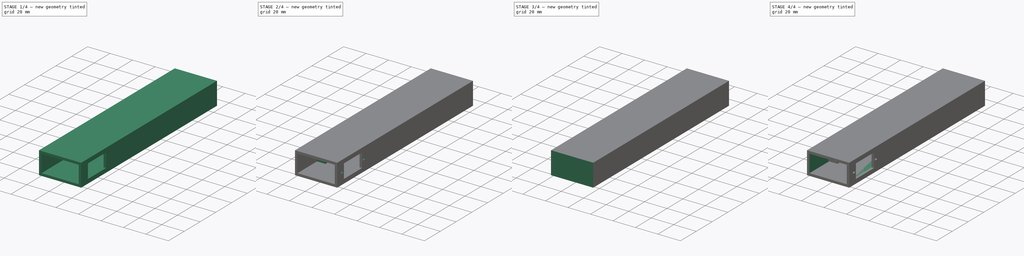
[diagram: build sequence overview — one tinted view per stage of 4, left to right]
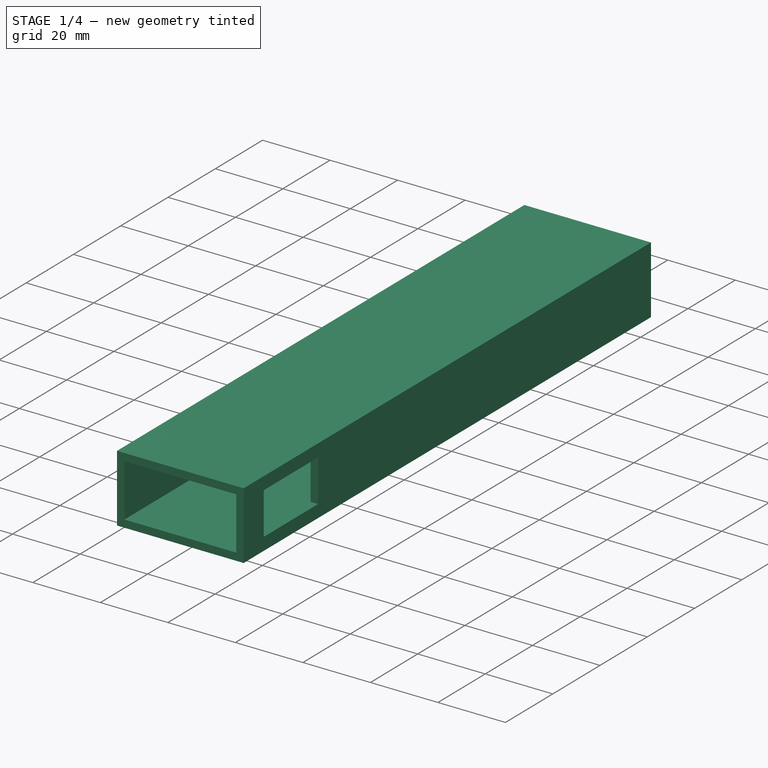
[diagram: stage 1 of 4 — iso view after this stage's code; geometry added in this stage tinted green]
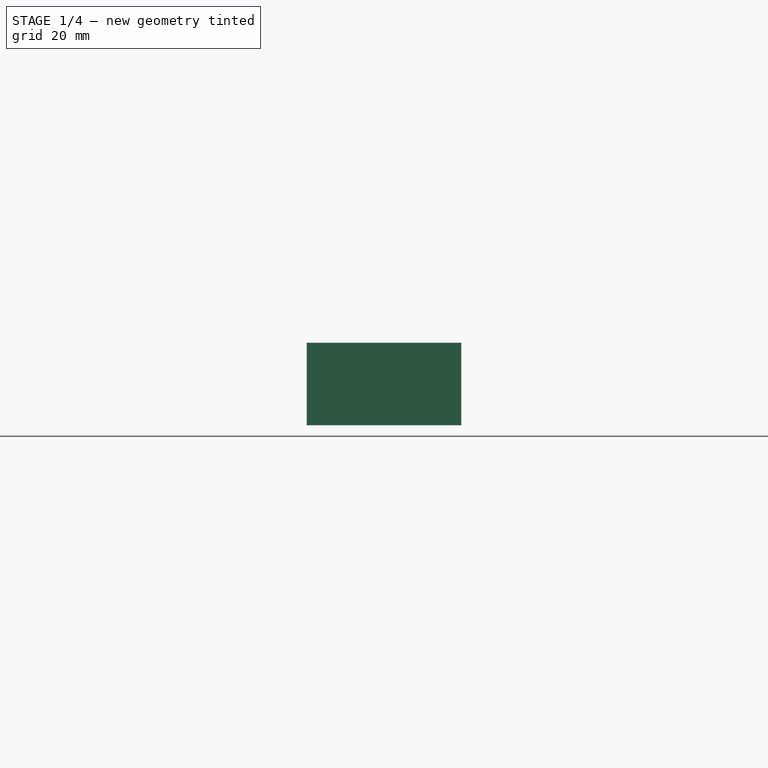
[diagram: stage 1 of 4 — front view after this stage's code; geometry added in this stage tinted green]
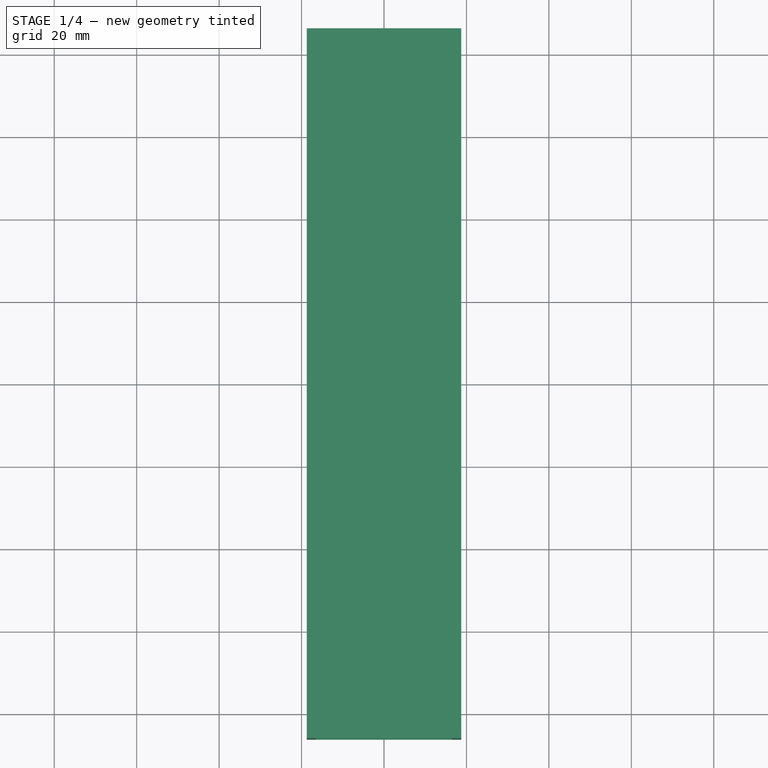
[diagram: stage 1 of 4 — top view after this stage's code; geometry added in this stage tinted green]
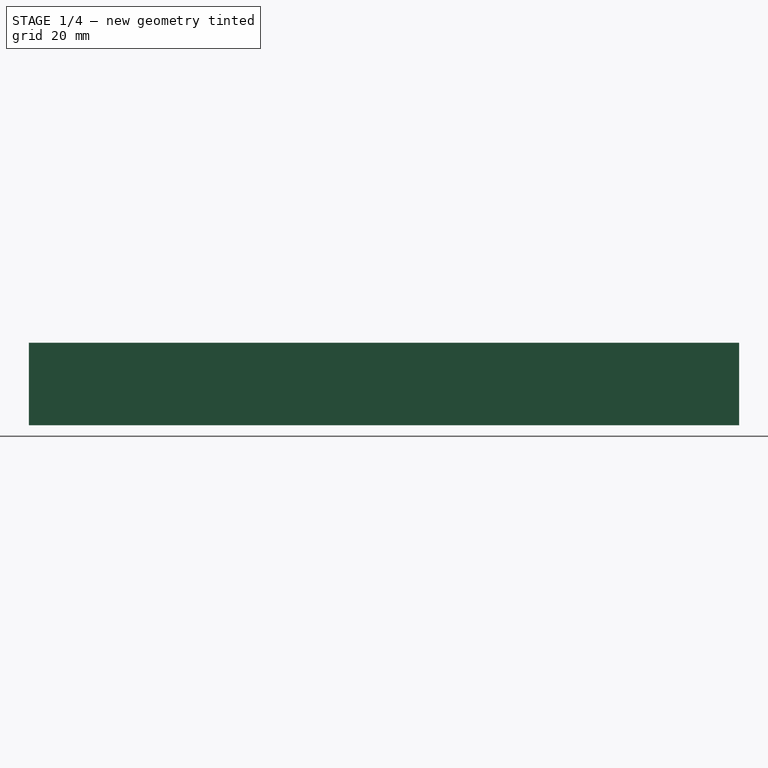
[diagram: stage 1 of 4 — right view after this stage's code; geometry added in this stage tinted green]
FCSTD DOCUMENT  (FreeCAD 0.19R)
Label: deslizar
License: All rights reserved
LicenseURL: http://en.wikipedia.org/wiki/All_rights_reserved
objects: Sketcher::SketchObject×10, PartDesign::Pocket×7, PartDesign::Pad×4, App::Part×1, PartDesign::Body×1
note: 33 computed .brp shape members not serialized (recipe doc carries the construction recipe); baked Part::Feature solids carry a one-line shape summary decoded from their .brp

FEATURE [App::Part] Part
  Origin = -> Origin
FEATURE [Sketcher::SketchObject] Sketch
  FullyConstrained = true
  MapMode = 5
  Support = -> [XY_Plane001]
  sketch-geometry (6):
    g0: LineSegment StartX=-18.75 StartY=-86.15 StartZ=0 EndX=18.75 EndY=-86.15 EndZ=0
    g1: LineSegment StartX=18.75 StartY=-86.15 StartZ=0 EndX=18.75 EndY=86.15 EndZ=0
    g2: LineSegment StartX=18.75 StartY=86.15 StartZ=0 EndX=-18.75 EndY=86.15 EndZ=0
    g3: LineSegment StartX=-18.75 StartY=86.15 StartZ=0 EndX=-18.75 EndY=-86.15 EndZ=0
    g4: LineSegment StartX=-18.75 StartY=-86.15 StartZ=0 EndX=0 EndY=0 EndZ=0
    g5: LineSegment StartX=18.75 StartY=86.15 StartZ=0 EndX=0 EndY=0 EndZ=0
  constraints (16):
    c: Coincident(g0,g1)
    c: Coincident(g1,g2)
    c: Coincident(g2,g3)
    c: Coincident(g3,g0)
    c: Horizontal(g0)
    c: Horizontal(g2)
    c: Vertical(g1)
    c: Vertical(g3)
    c: Coincident(g4,g0)
    c: Coincident(g4,g-1)
    c: Coincident(g5,g1)
    c: Coincident(g5,g-1)
    c: Parallel(g4,g5)
    c: DistanceY(g1,g1) = 172.3
    c: DistanceX(g0,g0) = 37.5
    c: Equal(g4,g5)
FEATURE [PartDesign::Pad] Pad
  Direction = (1,1,1)
  Length = 20
  Length2 = 100
  Profile = -> Sketch
  Refine = true
  Type = 0
FEATURE [Sketcher::SketchObject] Sketch001
  ExternalGeometry = -> [Pad]
  FullyConstrained = false
  MapMode = 5
  Placement = pos=(0,-86.15,0) rot=(1,0,0;1.5708rad)
  Support = -> [Pad]
  sketch-geometry (8):
    g0: LineSegment StartX=-16.55 StartY=2.2 StartZ=0 EndX=16.55 EndY=2.2 EndZ=0
    g1: LineSegment StartX=16.55 StartY=2.2 StartZ=0 EndX=16.55 EndY=17.8 EndZ=0
    g2: LineSegment StartX=16.55 StartY=17.8 StartZ=0 EndX=-16.55 EndY=17.8 EndZ=0
    g3: LineSegment StartX=-16.55 StartY=17.8 StartZ=0 EndX=-16.55 EndY=2.2 EndZ=0
    g4: LineSegment StartX=-18.75 StartY=16.933 StartZ=0 EndX=-16.55 EndY=16.933 EndZ=0
    g5: LineSegment StartX=-15.6528 StartY=17.8 StartZ=0 EndX=-15.6528 EndY=20 EndZ=0
    g6: LineSegment StartX=15.1546 StartY=2.2 StartZ=0 EndX=15.1546 EndY=0 EndZ=0
    g7: LineSegment StartX=16.55 StartY=4.13026 StartZ=0 EndX=18.75 EndY=4.13026 EndZ=0
  constraints (24):
    c: Coincident(g0,g1)
    c: Coincident(g1,g2)
    c: Coincident(g2,g3)
    c: Coincident(g3,g0)
    c: Horizontal(g0)
    c: Horizontal(g2)
    c: Vertical(g1)
    c: Vertical(g3)
    c: PointOnObject(g4,g-6)
    c: PointOnObject(g4,g3)
    c: Horizontal(g4)
    c: PointOnObject(g5,g2)
    c: PointOnObject(g5,g-3)
    c: Vertical(g5)
    c: PointOnObject(g6,g0)
    c: PointOnObject(g6,g-5)
    c: Vertical(g6)
    c: PointOnObject(g7,g1)
    c: PointOnObject(g7,g-4)
    c: Horizontal(g7)
    c: DistanceY(g6,g6) = 2.2
    c: DistanceX(g7,g7) = 2.2
    c: DistanceX(g4,g4) = 2.2
    c: DistanceY(g5,g5) = 2.2
FEATURE [PartDesign::Pocket] Pocket
  BaseFeature = -> Pad
  Length = 172
  Length2 = 100
  Profile = -> Sketch001
  Refine = true
  Type = 0
FEATURE [Sketcher::SketchObject] Sketch002
  ExternalGeometry = -> [Pocket]
  FullyConstrained = false
  MapMode = 5
  Placement = pos=(18.75,0,0) rot=(0.57735,0.57735,0.57735;2.0944rad)
  Support = -> [Pocket]
  sketch-geometry (7):
    g0: LineSegment StartX=-77.65 StartY=16.25 StartZ=0 EndX=-54.65 EndY=16.25 EndZ=0
    g1: LineSegment StartX=-54.65 StartY=16.25 StartZ=0 EndX=-54.65 EndY=3.75 EndZ=0
    g2: LineSegment StartX=-54.65 StartY=3.75 StartZ=0 EndX=-77.65 EndY=3.75 EndZ=0
    g3: LineSegment StartX=-77.65 StartY=3.75 StartZ=0 EndX=-77.65 EndY=16.25 EndZ=0
    g4: LineSegment StartX=-80.4648 StartY=16.25 StartZ=0 EndX=-80.4648 EndY=20 EndZ=0
    g5: LineSegment StartX=-80.9314 StartY=3.75 StartZ=0 EndX=-80.9314 EndY=0 EndZ=0
    g6: LineSegment StartX=-86.15 StartY=12.3242 StartZ=0 EndX=-77.65 EndY=12.3242 EndZ=0
  constraints (21):
    c: Coincident(g0,g1)
    c: Coincident(g1,g2)
    c: Coincident(g2,g3)
    c: Coincident(g3,g0)
    c: Horizontal(g0)
    c: Horizontal(g2)
    c: Vertical(g1)
    c: Vertical(g3)
    c: DistanceY(g1,g1) = 12.5
    c: DistanceX(g2,g2) = 23
    c: PointOnObject(g4,g0)
    c: PointOnObject(g4,g-4)
    c: Vertical(g4)
    c: PointOnObject(g5,g2)
    c: PointOnObject(g5,g-5)
    c: Vertical(g5)
    c: PointOnObject(g6,g-3)
    c: PointOnObject(g6,g3)
    c: Horizontal(g6)
    c: Equal(g5,g4)
    c: DistanceX(g6,g6) = 8.5
FEATURE [PartDesign::Pocket] Pocket001
  BaseFeature = -> Pocket
  Length = 10
  Length2 = 100
  Profile = -> Sketch002
  Refine = true
  Type = 0
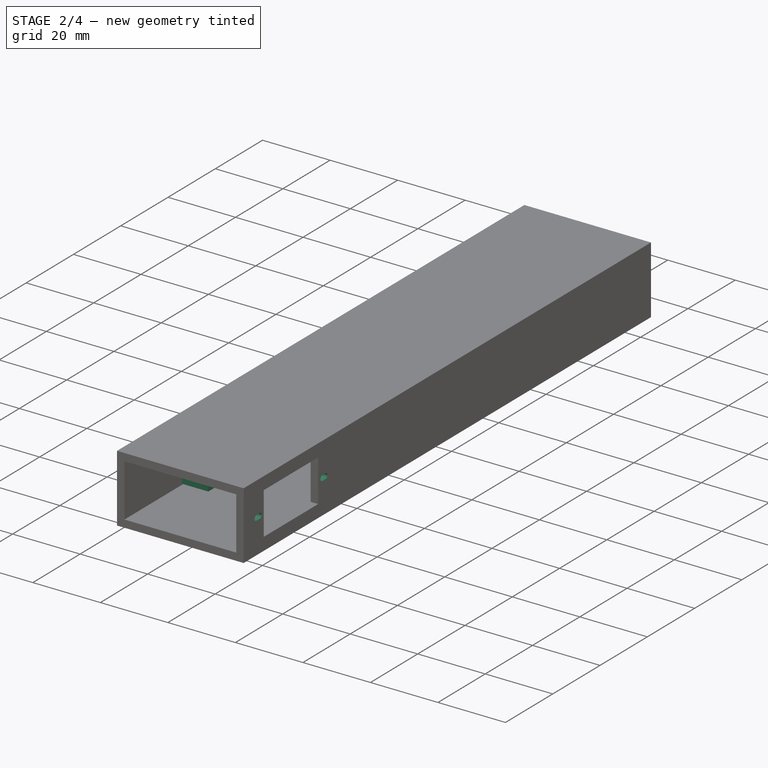
[diagram: stage 2 of 4 — iso view after this stage's code; geometry added in this stage tinted green]
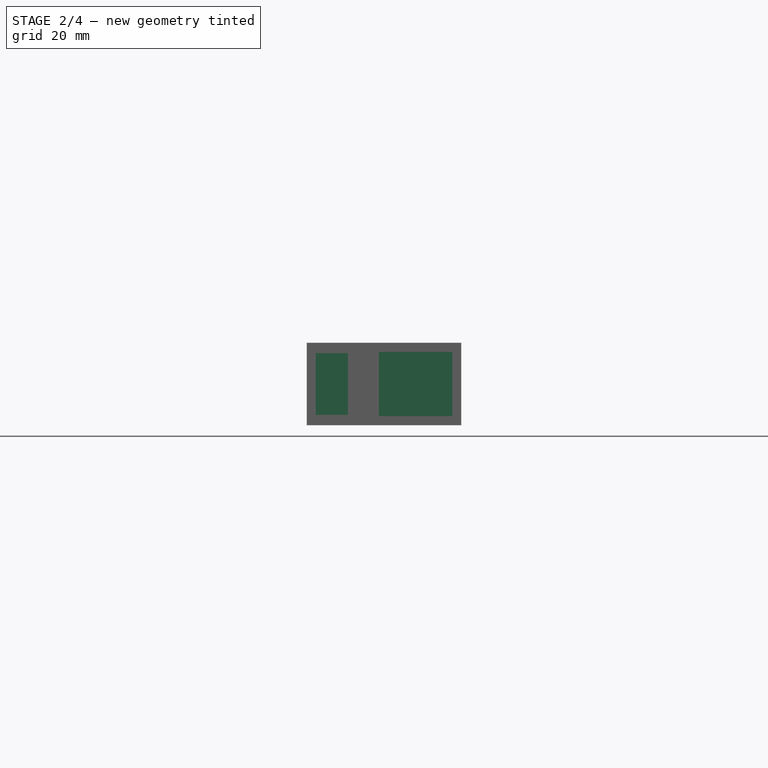
[diagram: stage 2 of 4 — front view after this stage's code; geometry added in this stage tinted green]
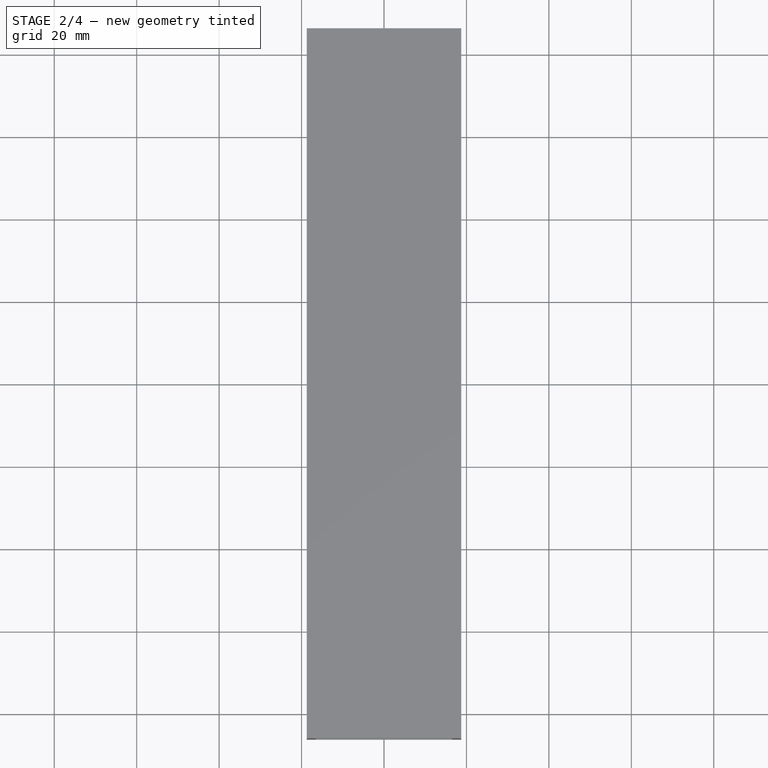
[diagram: stage 2 of 4 — top view after this stage's code; geometry added in this stage tinted green]
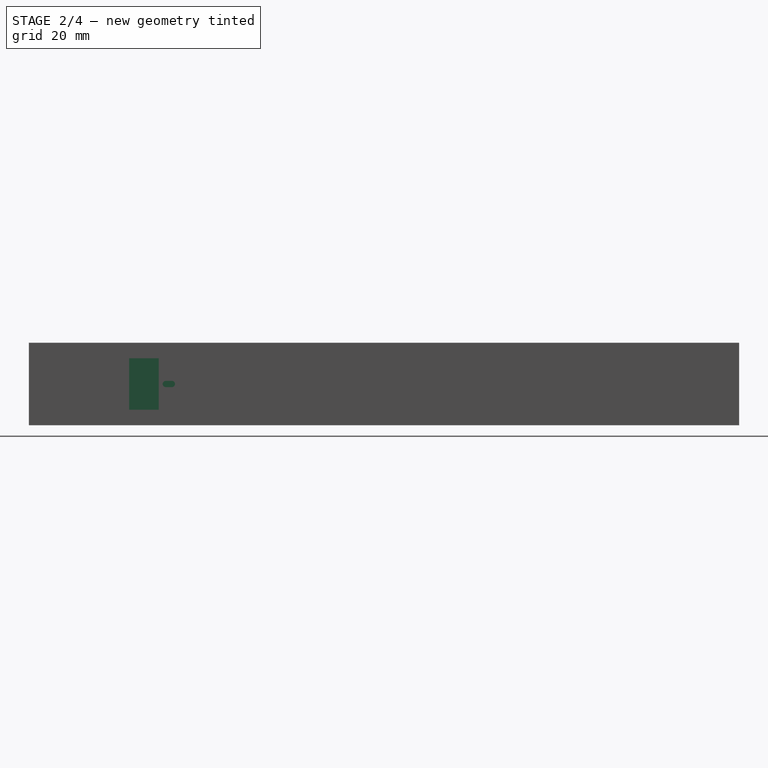
[diagram: stage 2 of 4 — right view after this stage's code; geometry added in this stage tinted green]
FEATURE [Sketcher::SketchObject] Sketch003
  ExternalGeometry = -> [Pocket001]
  FullyConstrained = false
  MapMode = 5
  Placement = pos=(18.75,0,0) rot=(0.57735,0.57735,0.57735;2.0944rad)
  Support = -> [Pocket001]
  sketch-geometry (16):
    g0: ArcOfCircle CenterX=-80.7757 CenterY=10 CenterZ=0 NormalX=0 NormalY=0 NormalZ=1 AngleXU=0 Radius=0.75 StartAngle=1.5708 EndAngle=4.71239
    g1: ArcOfCircle CenterX=-79.2757 CenterY=10 CenterZ=0 NormalX=0 NormalY=0 NormalZ=1 AngleXU=0 Radius=0.75 StartAngle=4.71239 EndAngle=7.85398
    g2: LineSegment StartX=-80.7757 StartY=9.25 StartZ=0 EndX=-79.2757 EndY=9.25 EndZ=0
    g3: LineSegment StartX=-80.7757 StartY=10.75 StartZ=0 EndX=-79.2757 EndY=10.75 EndZ=0
    g4: ArcOfCircle CenterX=-52.9553 CenterY=10 CenterZ=0 NormalX=0 NormalY=0 NormalZ=1 AngleXU=0 Radius=0.75 StartAngle=1.5708 EndAngle=4.71239
    g5: ArcOfCircle CenterX=-51.4553 CenterY=10 CenterZ=0 NormalX=0 NormalY=0 NormalZ=1 AngleXU=0 Radius=0.75 StartAngle=4.71239 EndAngle=7.85398
    g6: LineSegment StartX=-52.9553 StartY=9.25 StartZ=0 EndX=-51.4553 EndY=9.25 EndZ=0
    g7: LineSegment StartX=-52.9553 StartY=10.75 StartZ=0 EndX=-51.4553 EndY=10.75 EndZ=0
    g8: LineSegment StartX=-79.2757 StartY=9.25 StartZ=0 EndX=-79.2757 EndY=10.75 EndZ=0
    g9: LineSegment StartX=-52.9553 StartY=9.25 StartZ=0 EndX=-52.9553 EndY=10.75 EndZ=0
    g10: LineSegment StartX=-78.85 StartY=10.6175 StartZ=0 EndX=-77.65 EndY=10.6175 EndZ=0
    g11: LineSegment StartX=-53.45 StartY=10.5637 StartZ=0 EndX=-54.65 EndY=10.5637 EndZ=0
    g12: LineSegment StartX=-80.4214 StartY=10.75 StartZ=0 EndX=-80.4214 EndY=20 EndZ=0
    g13: LineSegment StartX=-80.6484 StartY=9.25 StartZ=0 EndX=-80.6484 EndY=0 EndZ=0
    g14: LineSegment StartX=-51.8224 StartY=10.75 StartZ=0 EndX=-51.8224 EndY=20 EndZ=0
    g15: LineSegment StartX=-51.5464 StartY=9.25 StartZ=0 EndX=-51.5464 EndY=0 EndZ=0
  constraints (42):
    c: Tangent(g0,g3) = 1.5708
    c: Tangent(g0,g2) = -1.5708
    c: Tangent(g2,g1) = -1.5708
    c: Tangent(g3,g1) = 1.5708
    c: Horizontal(g2)
    c: Equal(g0,g1)
    c: Tangent(g4,g7) = 1.5708
    c: Tangent(g4,g6) = -1.5708
    c: Tangent(g6,g5) = -1.5708
    c: Tangent(g7,g5) = 1.5708
    c: Horizontal(g6)
    c: Equal(g4,g5)
    c: Coincident(g8,g1)
    c: Coincident(g8,g1)
    c: Coincident(g9,g4)
    c: Coincident(g9,g4)
    c: DistanceY(g9,g9) = 1.5
    c: DistanceY(g8,g8) = 1.5
    c: DistanceX(g3,g3) = 1.5
    c: DistanceX(g7,g7) = 1.5
    c: PointOnObject(g10,g1)
    c: PointOnObject(g10,g-3)
    c: Horizontal(g10)
    c: PointOnObject(g11,g4)
    c: PointOnObject(g11,g-4)
    c: Horizontal(g11)
    c: DistanceX(g11,g11) = 1.2
    c: DistanceX(g10,g10) = 1.2
    c: PointOnObject(g12,g3)
    c: PointOnObject(g12,g-8)
    c: Vertical(g12)
    c: PointOnObject(g13,g2)
    c: PointOnObject(g13,g-9)
    c: Vertical(g13)
    c: PointOnObject(g14,g7)
    c: PointOnObject(g14,g-8)
    c: Vertical(g14)
    c: PointOnObject(g15,g6)
    c: PointOnObject(g15,g-9)
    c: Vertical(g15)
    c: Equal(g13,g12)
    c: Equal(g14,g15)
FEATURE [PartDesign::Pocket] Pocket002
  BaseFeature = -> Pocket001
  Length = 5
  Length2 = 100
  Profile = -> Sketch003
  Refine = true
  Type = 0
FEATURE [PartDesign::Pad] Pad001
  BaseFeature = -> Pocket002
  Direction = (2,0,0)
  Length = 10
  Length2 = 100
  Refine = true
  Type = 0
  UseCustomVector = true
FEATURE [Sketcher::SketchObject] Sketch010
  ExternalGeometry = -> [Pad001]
  FullyConstrained = false
  MapMode = 5
  Placement = pos=(18.75,0,0) rot=(0.57735,0.57735,0.57735;2.0944rad)
  Support = -> [Pad001]
  sketch-geometry (8):
    g0: LineSegment StartX=-27.85 StartY=18.5 StartZ=0 EndX=82.15 EndY=18.5 EndZ=0
    g1: LineSegment StartX=82.15 StartY=18.5 StartZ=0 EndX=82.15 EndY=1.5 EndZ=0
    g2: LineSegment StartX=82.15 StartY=1.5 StartZ=0 EndX=-27.85 EndY=1.5 EndZ=0
    g3: LineSegment StartX=-27.85 StartY=1.5 StartZ=0 EndX=-27.85 EndY=18.5 EndZ=0
    g4: LineSegment StartX=82.15 StartY=10.1649 StartZ=0 EndX=86.15 EndY=10.1649 EndZ=0
    g5: LineSegment StartX=72.9058 StartY=18.5 StartZ=0 EndX=72.9058 EndY=20 EndZ=0
    g6: LineSegment StartX=76.1577 StartY=1.5 StartZ=0 EndX=76.1577 EndY=0 EndZ=0
    g7: LineSegment StartX=-45.1609 StartY=10.1559 StartZ=0 EndX=-45.1609 EndY=10.1559 EndZ=0
  constraints (22):
    c: Coincident(g0,g1)
    c: Coincident(g1,g2)
    c: Coincident(g2,g3)
    c: Coincident(g3,g0)
    c: Horizontal(g0)
    c: Horizontal(g2)
    c: Vertical(g1)
    c: Vertical(g3)
    c: PointOnObject(g4,g1)
    c: PointOnObject(g4,g-4)
    c: Horizontal(g4)
    c: PointOnObject(g5,g0)
    c: PointOnObject(g5,g-3)
    c: Vertical(g5)
    c: PointOnObject(g6,g2)
    c: PointOnObject(g6,g-1)
    c: Vertical(g6)
    c: DistanceX(g0,g0) = 110
    c: DistanceY(g3,g3) = 17
    c: Equal(g6,g5)
    c: Vertical(g7)
    c: DistanceX(g4,g4) = 4
FEATURE [PartDesign::Pad] Pad003
  BaseFeature = -> Pad001
  Direction = (-1.1,0,0)
  Length = 20
  Length2 = 100
  Profile = -> Sketch010
  Refine = true
  Type = 0
  UseCustomVector = true
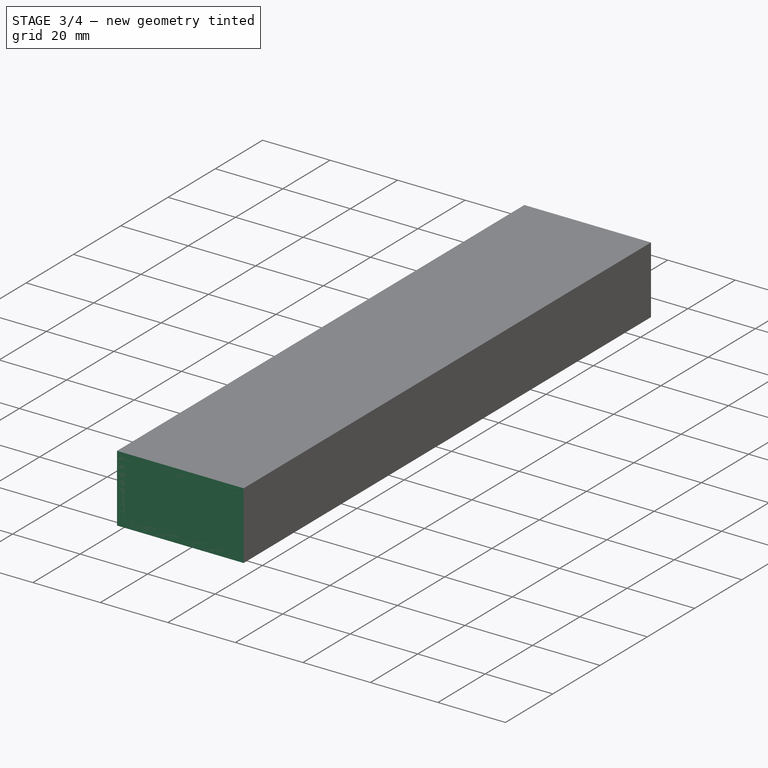
[diagram: stage 3 of 4 — iso view after this stage's code; geometry added in this stage tinted green]
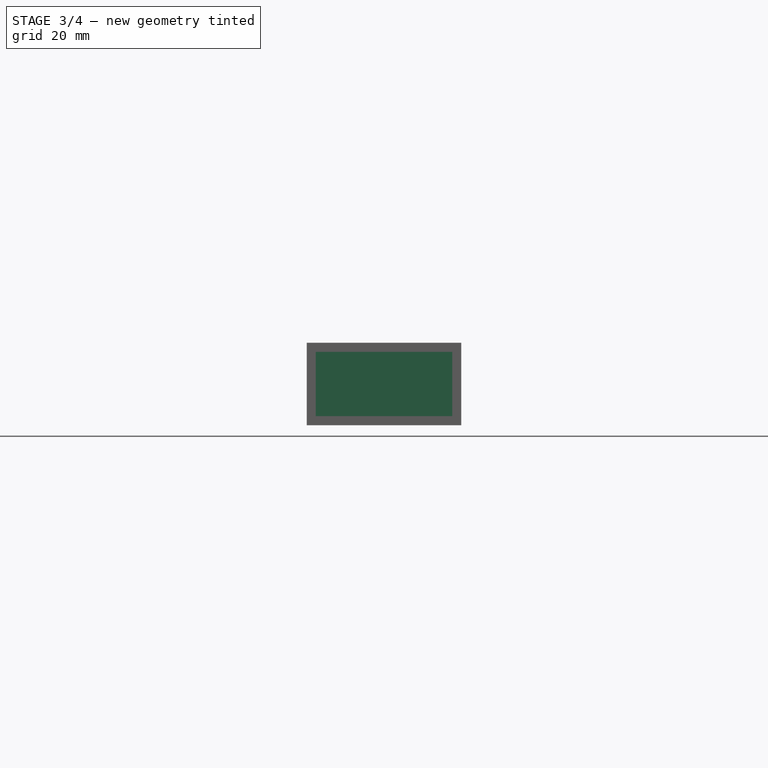
[diagram: stage 3 of 4 — front view after this stage's code; geometry added in this stage tinted green]
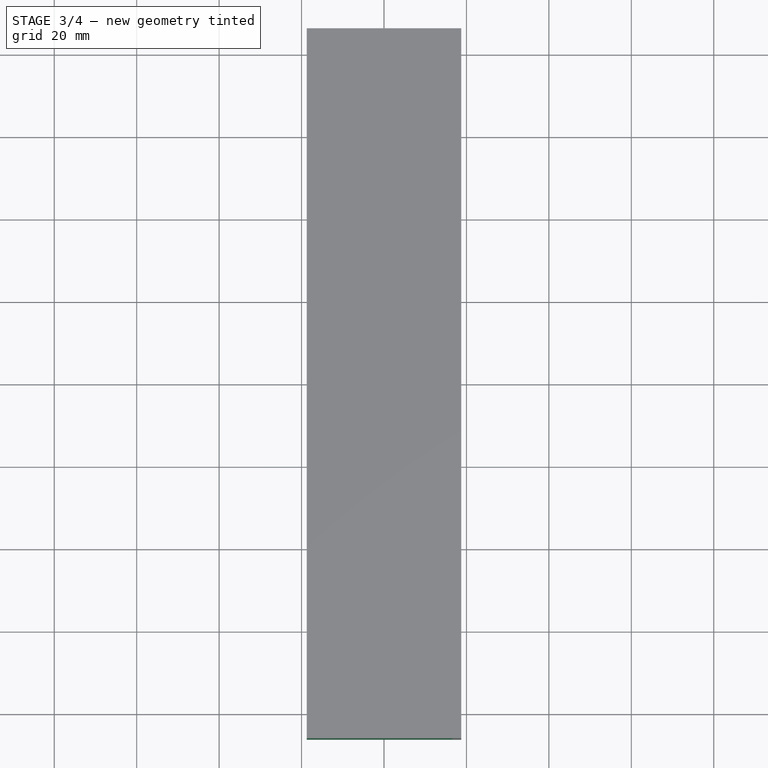
[diagram: stage 3 of 4 — top view after this stage's code; geometry added in this stage tinted green]
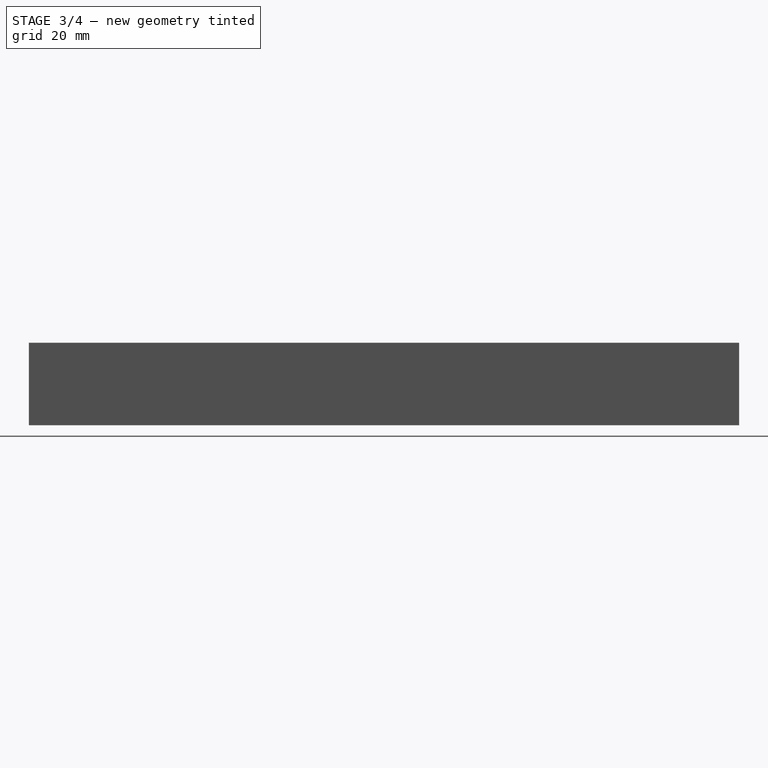
[diagram: stage 3 of 4 — right view after this stage's code; geometry added in this stage tinted green]
FEATURE [Sketcher::SketchObject] Sketch007
  FullyConstrained = true
  MapMode = 5
  Support = -> [XY_Plane002]
  sketch-geometry (6):
    g0: LineSegment StartX=-18.75 StartY=-86.15 StartZ=0 EndX=18.75 EndY=-86.15 EndZ=0
    g1: LineSegment StartX=18.75 StartY=-86.15 StartZ=0 EndX=18.75 EndY=86.15 EndZ=0
    g2: LineSegment StartX=18.75 StartY=86.15 StartZ=0 EndX=-18.75 EndY=86.15 EndZ=0
    g3: LineSegment StartX=-18.75 StartY=86.15 StartZ=0 EndX=-18.75 EndY=-86.15 EndZ=0
    g4: LineSegment StartX=-18.75 StartY=-86.15 StartZ=0 EndX=0 EndY=0 EndZ=0
    g5: LineSegment StartX=18.75 StartY=86.15 StartZ=0 EndX=0 EndY=0 EndZ=0
  constraints (16):
    c: Coincident(g0,g1)
    c: Coincident(g1,g2)
    c: Coincident(g2,g3)
    c: Coincident(g3,g0)
    c: Horizontal(g0)
    c: Horizontal(g2)
    c: Vertical(g1)
    c: Vertical(g3)
    c: Coincident(g4,g0)
    c: Coincident(g4,g-1)
    c: Coincident(g5,g1)
    c: Coincident(g5,g-1)
    c: Parallel(g4,g5)
    c: DistanceY(g1,g1) = 172.3
    c: DistanceX(g0,g0) = 37.5
    c: Equal(g4,g5)
FEATURE [PartDesign::Pad] Pad002
  Direction = (1,1,1)
  Length = 20
  Length2 = 100
  Profile = -> Sketch007
  Refine = true
  Type = 0
FEATURE [Sketcher::SketchObject] Sketch011
  ExternalGeometry = -> [Pad003]
  FullyConstrained = false
  MapMode = 5
  Placement = pos=(18.75,0,0) rot=(0.57735,0.57735,0.57735;2.0944rad)
  Support = -> [Pad003]
  sketch-geometry (7):
    g0: LineSegment StartX=-23.85 StartY=16 StartZ=0 EndX=82.15 EndY=16 EndZ=0
    g1: LineSegment StartX=82.15 StartY=16 StartZ=0 EndX=82.15 EndY=4 EndZ=0
    g2: LineSegment StartX=82.15 StartY=4 StartZ=0 EndX=-23.85 EndY=4 EndZ=0
    g3: LineSegment StartX=-23.85 StartY=4 StartZ=0 EndX=-23.85 EndY=16 EndZ=0
    g4: LineSegment StartX=86.15 StartY=11.493 StartZ=0 EndX=82.15 EndY=11.493 EndZ=0
    g5: LineSegment StartX=73.4144 StartY=16 StartZ=0 EndX=73.4144 EndY=20 EndZ=0
    g6: LineSegment StartX=73.7472 StartY=4 StartZ=0 EndX=73.7472 EndY=0 EndZ=0
  constraints (21):
    c: Coincident(g0,g1)
    c: Coincident(g1,g2)
    c: Coincident(g2,g3)
    c: Coincident(g3,g0)
    c: Horizontal(g0)
    c: Horizontal(g2)
    c: Vertical(g1)
    c: Vertical(g3)
    c: DistanceX(g0,g0) = 106
    c: DistanceY(g3,g3) = 12
    c: PointOnObject(g4,g-3)
    c: PointOnObject(g4,g1)
    c: Horizontal(g4)
    c: DistanceX(g4,g4) = 4
    c: PointOnObject(g5,g0)
    c: PointOnObject(g5,g-4)
    c: Vertical(g5)
    c: PointOnObject(g6,g2)
    c: PointOnObject(g6,g-1)
    c: Vertical(g6)
    c: Equal(g5,g6)
FEATURE [PartDesign::Pocket] Pocket006
  BaseFeature = -> Pad003
  Length = 4
  Length2 = 100
  Midplane = true
  Profile = -> Sketch011
  Refine = true
  Reversed = true
  Type = 0
FEATURE [PartDesign::Body] Body
  Group = -> [Sketch,Pad,Sketch001,Pocket,Sketch002,Pocket001,Sketch003,Pocket002,Pad001,Sketch010,Pad003,Sketch011,Pocket006]
  Origin = -> Origin001
  Tip = -> Pocket006
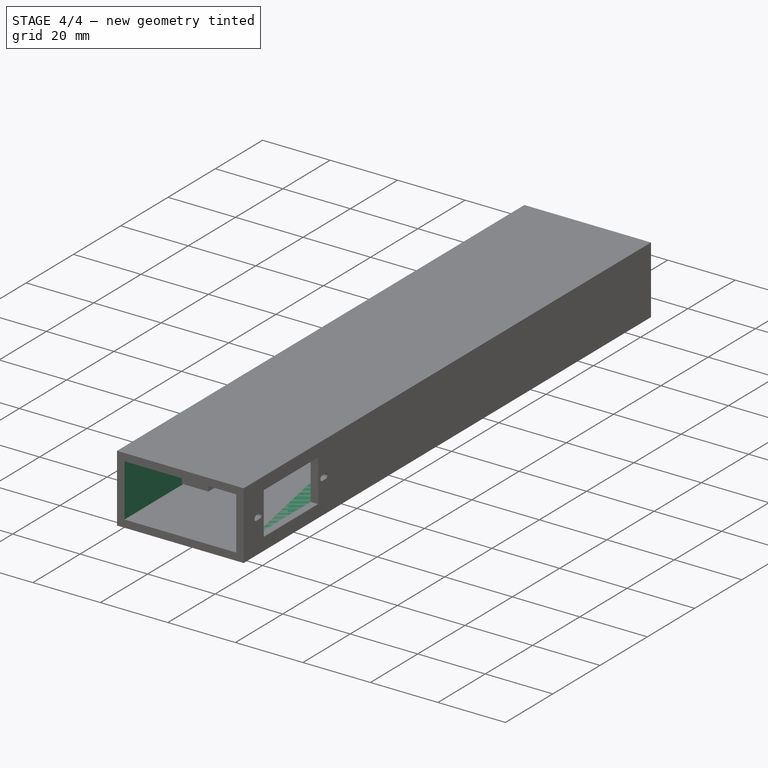
[diagram: stage 4 of 4 — iso view after this stage's code; geometry added in this stage tinted green]
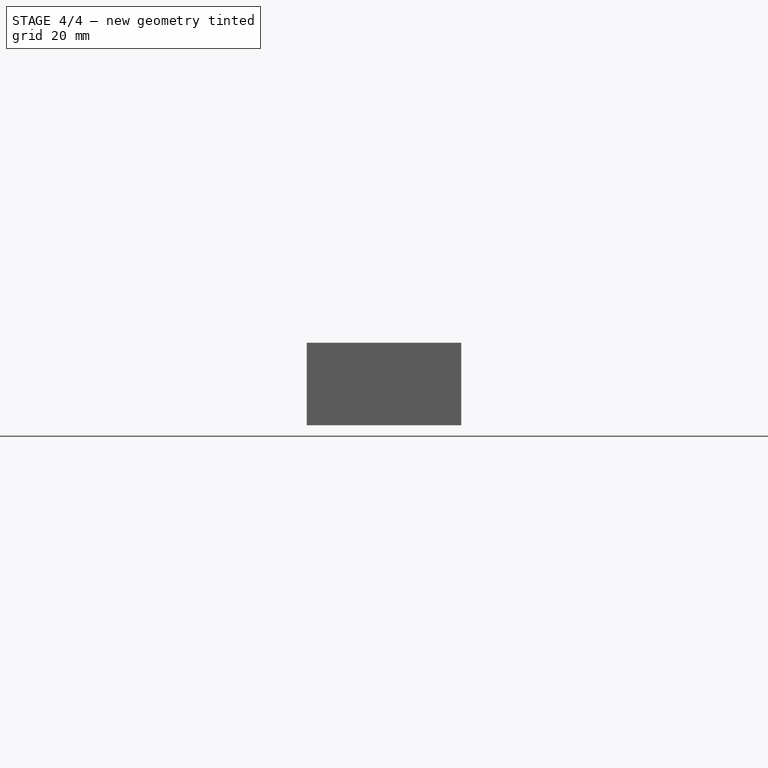
[diagram: stage 4 of 4 — front view after this stage's code; geometry added in this stage tinted green]
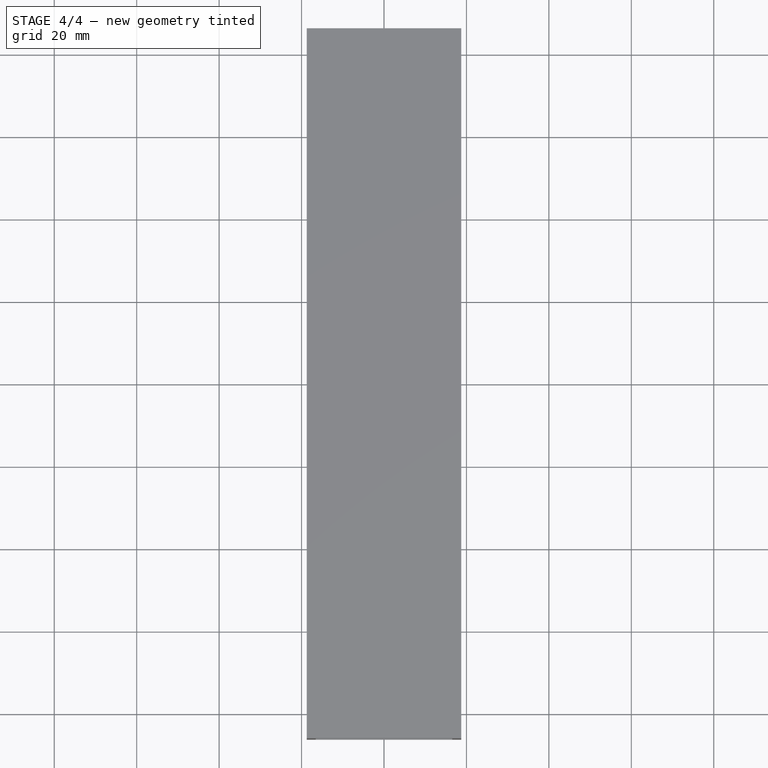
[diagram: stage 4 of 4 — top view after this stage's code; geometry added in this stage tinted green]
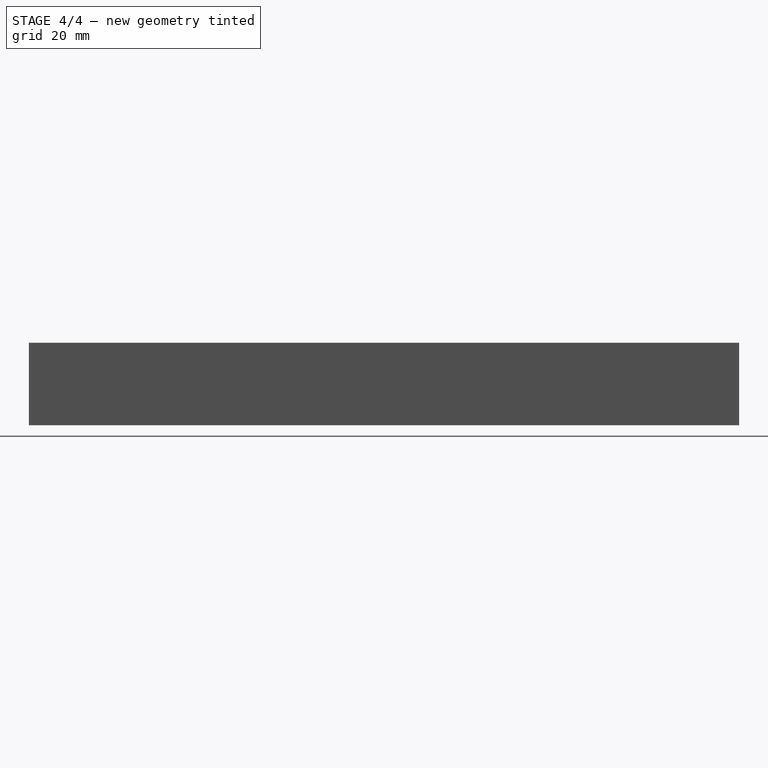
[diagram: stage 4 of 4 — right view after this stage's code; geometry added in this stage tinted green]
FEATURE [Sketcher::SketchObject] Sketch006
  ExternalGeometry = -> [Pad002]
  FullyConstrained = false
  MapMode = 5
  Placement = pos=(0,-86.15,0) rot=(1,0,0;1.5708rad)
  Support = -> [Pad002]
  sketch-geometry (8):
    g0: LineSegment StartX=-16.55 StartY=2.2 StartZ=0 EndX=16.55 EndY=2.2 EndZ=0
    g1: LineSegment StartX=16.55 StartY=2.2 StartZ=0 EndX=16.55 EndY=17.8 EndZ=0
    g2: LineSegment StartX=16.55 StartY=17.8 StartZ=0 EndX=-16.55 EndY=17.8 EndZ=0
    g3: LineSegment StartX=-16.55 StartY=17.8 StartZ=0 EndX=-16.55 EndY=2.2 EndZ=0
    g4: LineSegment StartX=-18.75 StartY=16.933 StartZ=0 EndX=-16.55 EndY=16.933 EndZ=0
    g5: LineSegment StartX=-15.6528 StartY=17.8 StartZ=0 EndX=-15.6528 EndY=20 EndZ=0
    g6: LineSegment StartX=15.1546 StartY=2.2 StartZ=0 EndX=15.1546 EndY=0 EndZ=0
    g7: LineSegment StartX=16.55 StartY=4.13026 StartZ=0 EndX=18.75 EndY=4.13026 EndZ=0
  constraints (24):
    c: Coincident(g0,g1)
    c: Coincident(g1,g2)
    c: Coincident(g2,g3)
    c: Coincident(g3,g0)
    c: Horizontal(g0)
    c: Horizontal(g2)
    c: Vertical(g1)
    c: Vertical(g3)
    c: PointOnObject(g4,g-6)
    c: PointOnObject(g4,g3)
    c: Horizontal(g4)
    c: PointOnObject(g5,g2)
    c: PointOnObject(g5,g-3)
    c: Vertical(g5)
    c: PointOnObject(g6,g0)
    c: PointOnObject(g6,g-5)
    c: Vertical(g6)
    c: PointOnObject(g7,g1)
    c: PointOnObject(g7,g-4)
    c: Horizontal(g7)
    c: DistanceY(g6,g6) = 2.2
    c: DistanceX(g7,g7) = 2.2
    c: DistanceX(g4,g4) = 2.2
    c: DistanceY(g5,g5) = 2.2
FEATURE [PartDesign::Pocket] Pocket004
  BaseFeature = -> Pad002
  Length = 172
  Length2 = 100
  Profile = -> Sketch006
  Refine = true
  Type = 0
FEATURE [Sketcher::SketchObject] Sketch009
  ExternalGeometry = -> [Pocket004]
  FullyConstrained = false
  MapMode = 5
  Placement = pos=(18.75,0,0) rot=(0.57735,0.57735,0.57735;2.0944rad)
  Support = -> [Pocket004]
  sketch-geometry (7):
    g0: LineSegment StartX=-77.65 StartY=16.25 StartZ=0 EndX=-54.65 EndY=16.25 EndZ=0
    g1: LineSegment StartX=-54.65 StartY=16.25 StartZ=0 EndX=-54.65 EndY=3.75 EndZ=0
    g2: LineSegment StartX=-54.65 StartY=3.75 StartZ=0 EndX=-77.65 EndY=3.75 EndZ=0
    g3: LineSegment StartX=-77.65 StartY=3.75 StartZ=0 EndX=-77.65 EndY=16.25 EndZ=0
    g4: LineSegment StartX=-80.4648 StartY=16.25 StartZ=0 EndX=-80.4648 EndY=20 EndZ=0
    g5: LineSegment StartX=-80.9314 StartY=3.75 StartZ=0 EndX=-80.9314 EndY=0 EndZ=0
    g6: LineSegment StartX=-86.15 StartY=12.3242 StartZ=0 EndX=-77.65 EndY=12.3242 EndZ=0
  constraints (21):
    c: Coincident(g0,g1)
    c: Coincident(g1,g2)
    c: Coincident(g2,g3)
    c: Coincident(g3,g0)
    c: Horizontal(g0)
    c: Horizontal(g2)
    c: Vertical(g1)
    c: Vertical(g3)
    c: DistanceY(g1,g1) = 12.5
    c: DistanceX(g2,g2) = 23
    c: PointOnObject(g4,g0)
    c: PointOnObject(g4,g-4)
    c: Vertical(g4)
    c: PointOnObject(g5,g2)
    c: PointOnObject(g5,g-5)
    c: Vertical(g5)
    c: PointOnObject(g6,g-3)
    c: PointOnObject(g6,g3)
    c: Horizontal(g6)
    c: Equal(g5,g4)
    c: DistanceX(g6,g6) = 8.5
FEATURE [PartDesign::Pocket] Pocket003
  BaseFeature = -> Pocket004
  Length = 10
  Length2 = 100
  Profile = -> Sketch009
  Refine = true
  Type = 0
FEATURE [Sketcher::SketchObject] Sketch005
  ExternalGeometry = -> [Pocket003]
  FullyConstrained = false
  MapMode = 5
  Placement = pos=(18.75,0,0) rot=(0.57735,0.57735,0.57735;2.0944rad)
  Support = -> [Pocket003]
  sketch-geometry (16):
    g0: ArcOfCircle CenterX=-80.7757 CenterY=10 CenterZ=0 NormalX=0 NormalY=0 NormalZ=1 AngleXU=0 Radius=0.75 StartAngle=1.5708 EndAngle=4.71239
    g1: ArcOfCircle CenterX=-79.2757 CenterY=10 CenterZ=0 NormalX=0 NormalY=0 NormalZ=1 AngleXU=0 Radius=0.75 StartAngle=4.71239 EndAngle=7.85398
    g2: LineSegment StartX=-80.7757 StartY=9.25 StartZ=0 EndX=-79.2757 EndY=9.25 EndZ=0
    g3: LineSegment StartX=-80.7757 StartY=10.75 StartZ=0 EndX=-79.2757 EndY=10.75 EndZ=0
    g4: ArcOfCircle CenterX=-52.9553 CenterY=10 CenterZ=0 NormalX=0 NormalY=0 NormalZ=1 AngleXU=0 Radius=0.75 StartAngle=1.5708 EndAngle=4.71239
    g5: ArcOfCircle CenterX=-51.4553 CenterY=10 CenterZ=0 NormalX=0 NormalY=0 NormalZ=1 AngleXU=0 Radius=0.75 StartAngle=4.71239 EndAngle=7.85398
    g6: LineSegment StartX=-52.9553 StartY=9.25 StartZ=0 EndX=-51.4553 EndY=9.25 EndZ=0
    g7: LineSegment StartX=-52.9553 StartY=10.75 StartZ=0 EndX=-51.4553 EndY=10.75 EndZ=0
    g8: LineSegment StartX=-79.2757 StartY=9.25 StartZ=0 EndX=-79.2757 EndY=10.75 EndZ=0
    g9: LineSegment StartX=-52.9553 StartY=9.25 StartZ=0 EndX=-52.9553 EndY=10.75 EndZ=0
    g10: LineSegment StartX=-78.85 StartY=10.6175 StartZ=0 EndX=-77.65 EndY=10.6175 EndZ=0
    g11: LineSegment StartX=-53.45 StartY=10.5637 StartZ=0 EndX=-54.65 EndY=10.5637 EndZ=0
    g12: LineSegment StartX=-80.4214 StartY=10.75 StartZ=0 EndX=-80.4214 EndY=20 EndZ=0
    g13: LineSegment StartX=-80.6484 StartY=9.25 StartZ=0 EndX=-80.6484 EndY=0 EndZ=0
    g14: LineSegment StartX=-51.8224 StartY=10.75 StartZ=0 EndX=-51.8224 EndY=20 EndZ=0
    g15: LineSegment StartX=-51.5464 StartY=9.25 StartZ=0 EndX=-51.5464 EndY=0 EndZ=0
  constraints (42):
    c: Tangent(g0,g3) = 1.5708
    c: Tangent(g0,g2) = -1.5708
    c: Tangent(g2,g1) = -1.5708
    c: Tangent(g3,g1) = 1.5708
    c: Horizontal(g2)
    c: Equal(g0,g1)
    c: Tangent(g4,g7) = 1.5708
    c: Tangent(g4,g6) = -1.5708
    c: Tangent(g6,g5) = -1.5708
    c: Tangent(g7,g5) = 1.5708
    c: Horizontal(g6)
    c: Equal(g4,g5)
    c: Coincident(g8,g1)
    c: Coincident(g8,g1)
    c: Coincident(g9,g4)
    c: Coincident(g9,g4)
    c: DistanceY(g9,g9) = 1.5
    c: DistanceY(g8,g8) = 1.5
    c: DistanceX(g3,g3) = 1.5
    c: DistanceX(g7,g7) = 1.5
    c: PointOnObject(g10,g1)
    c: PointOnObject(g10,g-3)
    c: Horizontal(g10)
    c: PointOnObject(g11,g4)
    c: PointOnObject(g11,g-4)
    c: Horizontal(g11)
    c: DistanceX(g11,g11) = 1.2
    c: DistanceX(g10,g10) = 1.2
    c: PointOnObject(g12,g3)
    c: PointOnObject(g12,g-8)
    c: Vertical(g12)
    c: PointOnObject(g13,g2)
    c: PointOnObject(g13,g-9)
    c: Vertical(g13)
    c: PointOnObject(g14,g7)
    c: PointOnObject(g14,g-8)
    c: Vertical(g14)
    c: PointOnObject(g15,g6)
    c: PointOnObject(g15,g-9)
    c: Vertical(g15)
    c: Equal(g13,g12)
    c: Equal(g14,g15)
FEATURE [PartDesign::Pocket] Pocket005
  BaseFeature = -> Pocket003
  Length = 5
  Length2 = 100
  Profile = -> Sketch005
  Refine = true
  Type = 0
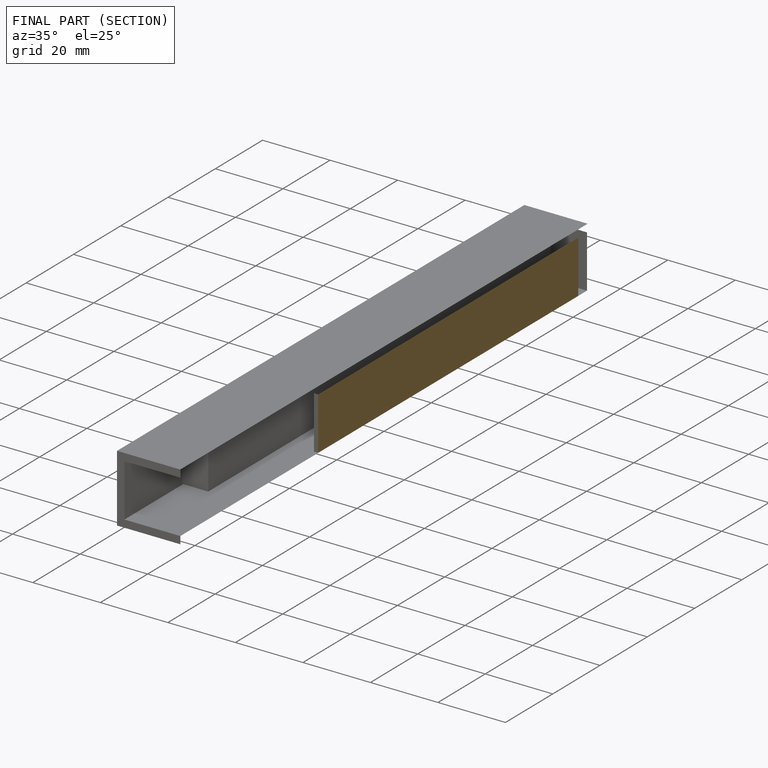
[diagram: finished part — half-section view (interior)]
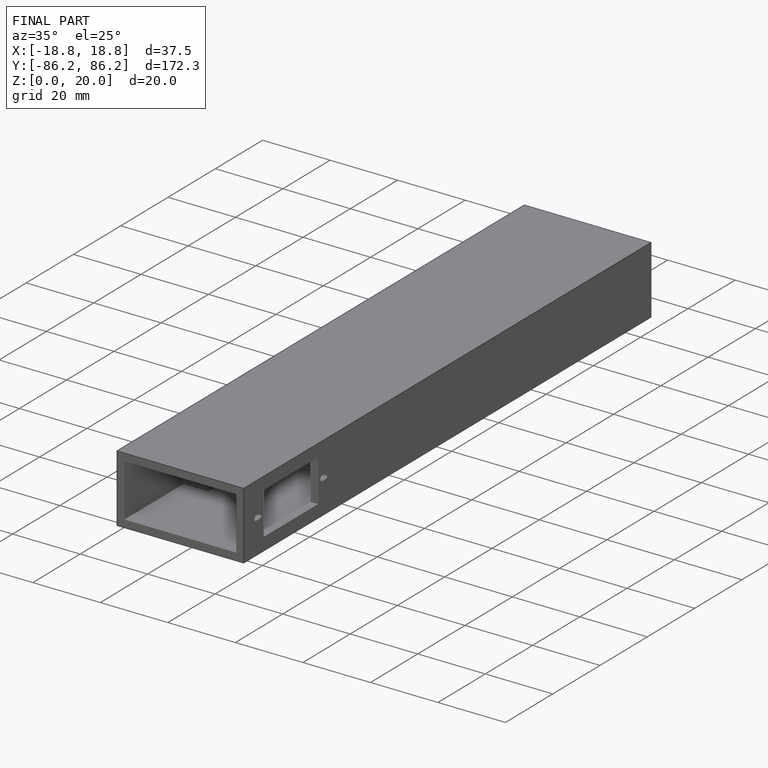
[diagram: finished part — iso view with bounding-box wireframe]
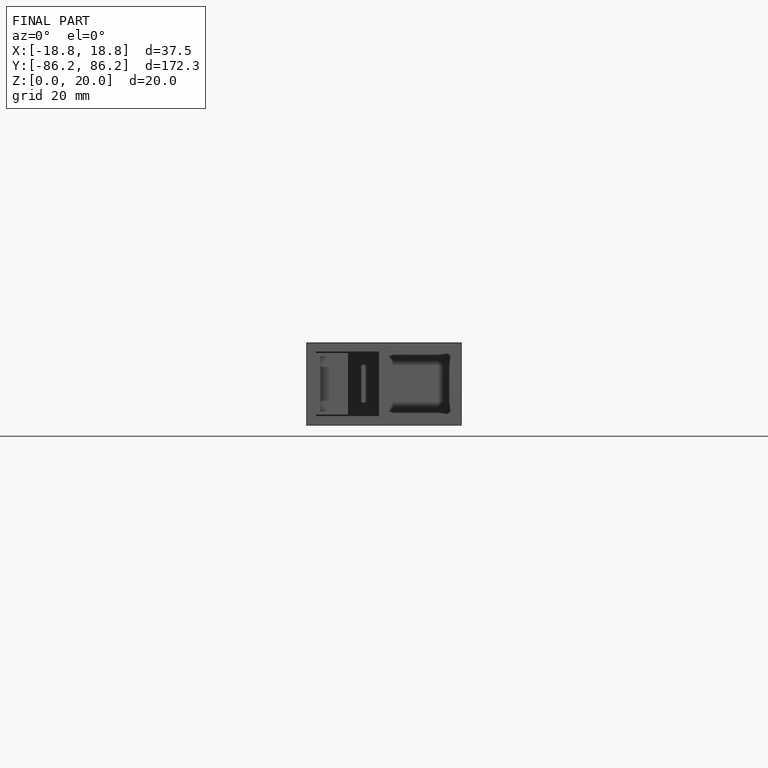
[diagram: finished part — front view with bounding-box wireframe]
